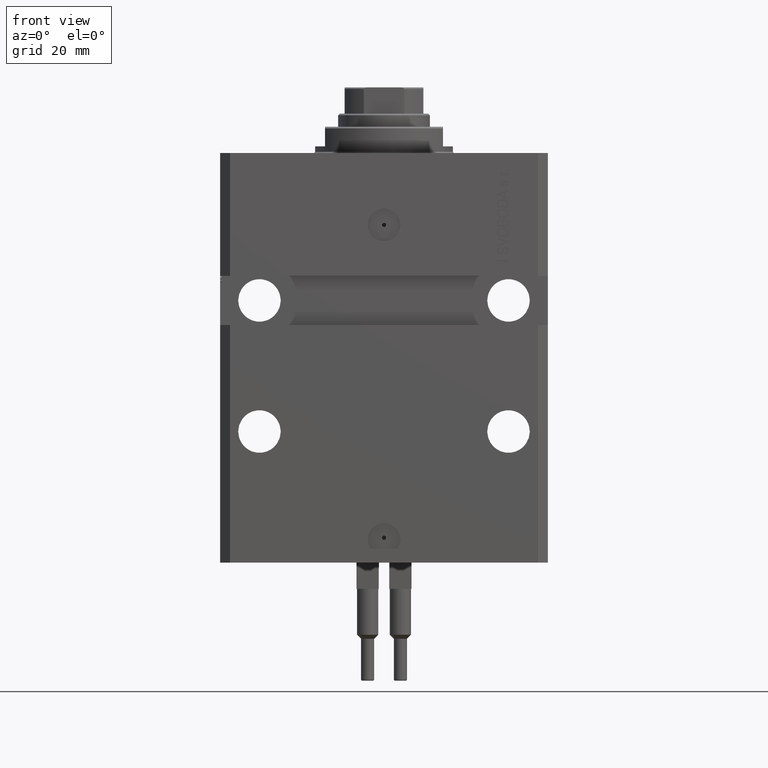
[diagram: clean part render]
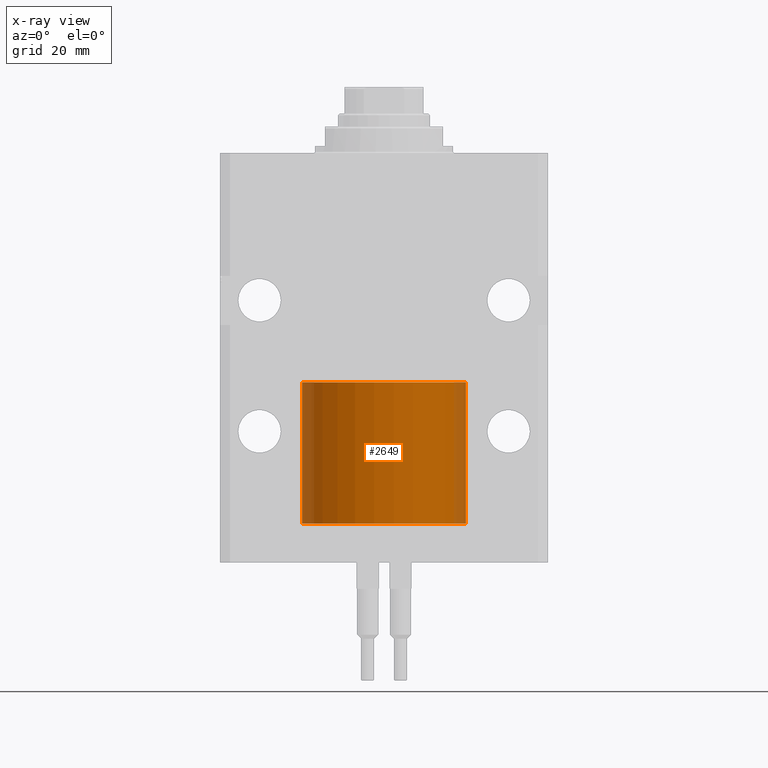
[diagram: x-ray — body ghosted, one internal face saturated and labeled with its STEP entity id]
A machine part, front view, then the same camera in x-ray: the body is ghosted and one INTERNAL B-rep face — a face not visible from any outside direction — is saturated and labeled: STEP entity #2649.
In plain terms, the highlighted cylindrical surface (partial cylindrical patch) has radius 25 mm, axis along (-0, -0, -1).
Its self-contained STEP definition (entity closure, byte-faithful):
#2302 = EDGE_CURVE ( 'NONE', #21545, #29430, #23176, .T. ) ;
#2649 = ADVANCED_FACE ( 'NONE', ( #18132 ), #10918, .T. ) ;
#2888 = CIRCLE ( 'NONE', #32194, 25.00000000000000000 ) ;
#3804 = CARTESIAN_POINT ( 'NONE',  ( 0.000000000000000000, 0.000000000000000000, 0.000000000000000000 ) ) ;
#4197 = AXIS2_PLACEMENT_3D ( 'NONE', #3804, #45428, #27098 ) ;
#5126 = VERTEX_POINT ( 'NONE', #44892 ) ;
#5984 = ORIENTED_EDGE ( 'NONE', *, *, #18255, .T. ) ;
#8062 = DIRECTION ( 'NONE',  ( 1.000000000000000000, 0.000000000000000000, 0.000000000000000000 ) ) ;
#10918 = CYLINDRICAL_SURFACE ( 'NONE', #37416, 25.00000000000000000 ) ;
#11778 = DIRECTION ( 'NONE',  ( 0.000000000000000000, 0.000000000000000000, 1.000000000000000000 ) ) ;
#12480 = DIRECTION ( 'NONE',  ( -0.000000000000000000, -0.000000000000000000, -1.000000000000000000 ) ) ;
#13448 = DIRECTION ( 'NONE',  ( -0.000000000000000000, -0.000000000000000000, -1.000000000000000000 ) ) ;
#14156 = ORIENTED_EDGE ( 'NONE', *, *, #15947, .F. ) ;
#14394 = DIRECTION ( 'NONE',  ( -1.000000000000000000, 0.000000000000000000, 0.000000000000000000 ) ) ;
#15947 = EDGE_CURVE ( 'NONE', #5126, #29430, #46426, .T. ) ;
#18132 = FACE_OUTER_BOUND ( 'NONE', #48939, .T. ) ;
#18255 = EDGE_CURVE ( 'NONE', #42277, #21545, #32061, .T. ) ;
#20663 = ORIENTED_EDGE ( 'NONE', *, *, #33080, .F. ) ;
#21545 = VERTEX_POINT ( 'NONE', #22747 ) ;
#22747 = CARTESIAN_POINT ( 'NONE',  ( -25.00000000000000000, 0.000000000000000000, 0.000000000000000000 ) ) ;
#23176 = CIRCLE ( 'NONE', #4197, 25.00000000000000000 ) ;
#26381 = VECTOR ( 'NONE', #13448, 1000.000000000000000 ) ;
#27098 = DIRECTION ( 'NONE',  ( 1.000000000000000000, 0.000000000000000000, 0.000000000000000000 ) ) ;
#29430 = VERTEX_POINT ( 'NONE', #36598 ) ;
#29439 = VECTOR ( 'NONE', #12480, 1000.000000000000000 ) ;
#32061 = LINE ( 'NONE', #47402, #26381 ) ;
#32194 = AXIS2_PLACEMENT_3D ( 'NONE', #34835, #11778, #8062 ) ;
#33080 = EDGE_CURVE ( 'NONE', #42277, #5126, #2888, .T. ) ;
#33238 = DIRECTION ( 'NONE',  ( -0.000000000000000000, -0.000000000000000000, -1.000000000000000000 ) ) ;
#34835 = CARTESIAN_POINT ( 'NONE',  ( 0.000000000000000000, 0.000000000000000000, 43.10000000000000142 ) ) ;
#35022 = ORIENTED_EDGE ( 'NONE', *, *, #2302, .T. ) ;
#35531 = CARTESIAN_POINT ( 'NONE',  ( 25.00000000000000000, 3.061616997868383043E-15, 43.10000000000000142 ) ) ;
#36598 = CARTESIAN_POINT ( 'NONE',  ( 25.00000000000000000, 3.061616997868383043E-15, 0.000000000000000000 ) ) ;
#37416 = AXIS2_PLACEMENT_3D ( 'NONE', #41146, #33238, #14394 ) ;
#41146 = CARTESIAN_POINT ( 'NONE',  ( 0.000000000000000000, 0.000000000000000000, 43.10000000000000142 ) ) ;
#42277 = VERTEX_POINT ( 'NONE', #42355 ) ;
#42355 = CARTESIAN_POINT ( 'NONE',  ( -25.00000000000000000, 0.000000000000000000, 43.10000000000000142 ) ) ;
#44892 = CARTESIAN_POINT ( 'NONE',  ( 25.00000000000000000, 3.061616997868383043E-15, 43.10000000000000142 ) ) ;
#45428 = DIRECTION ( 'NONE',  ( 0.000000000000000000, 0.000000000000000000, 1.000000000000000000 ) ) ;
#46426 = LINE ( 'NONE', #35531, #29439 ) ;
#47402 = CARTESIAN_POINT ( 'NONE',  ( -25.00000000000000000, 0.000000000000000000, 43.10000000000000142 ) ) ;
#48939 = EDGE_LOOP ( 'NONE', ( #14156, #20663, #5984, #35022 ) ) ;